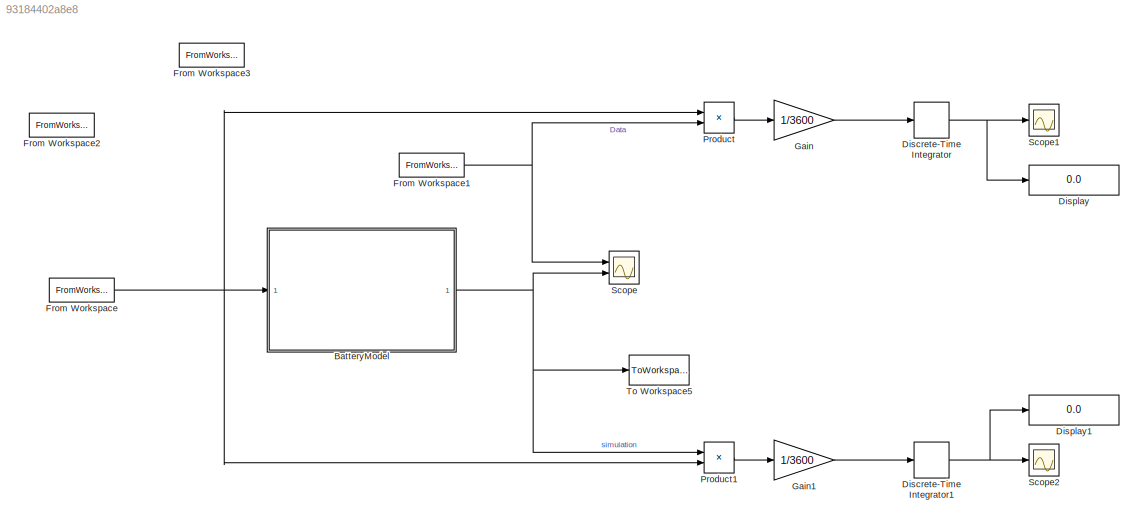
MODEL slx_93184402a8e8
KIND model
CONFIG AbsTol = auto
CONFIG EnableMultiTasking = off
CONFIG FixedStep = auto
CONFIG MaxStep = auto
CONFIG MinStep = auto
CONFIG RelTol = 1e-3
CONFIG SampleTimeConstraint = Unconstrained
CONFIG Solver = VariableStepAuto
CONFIG SolverName = VariableStepAuto
CONFIG StartTime = 0.0
CONFIG StopTime = 2417.4
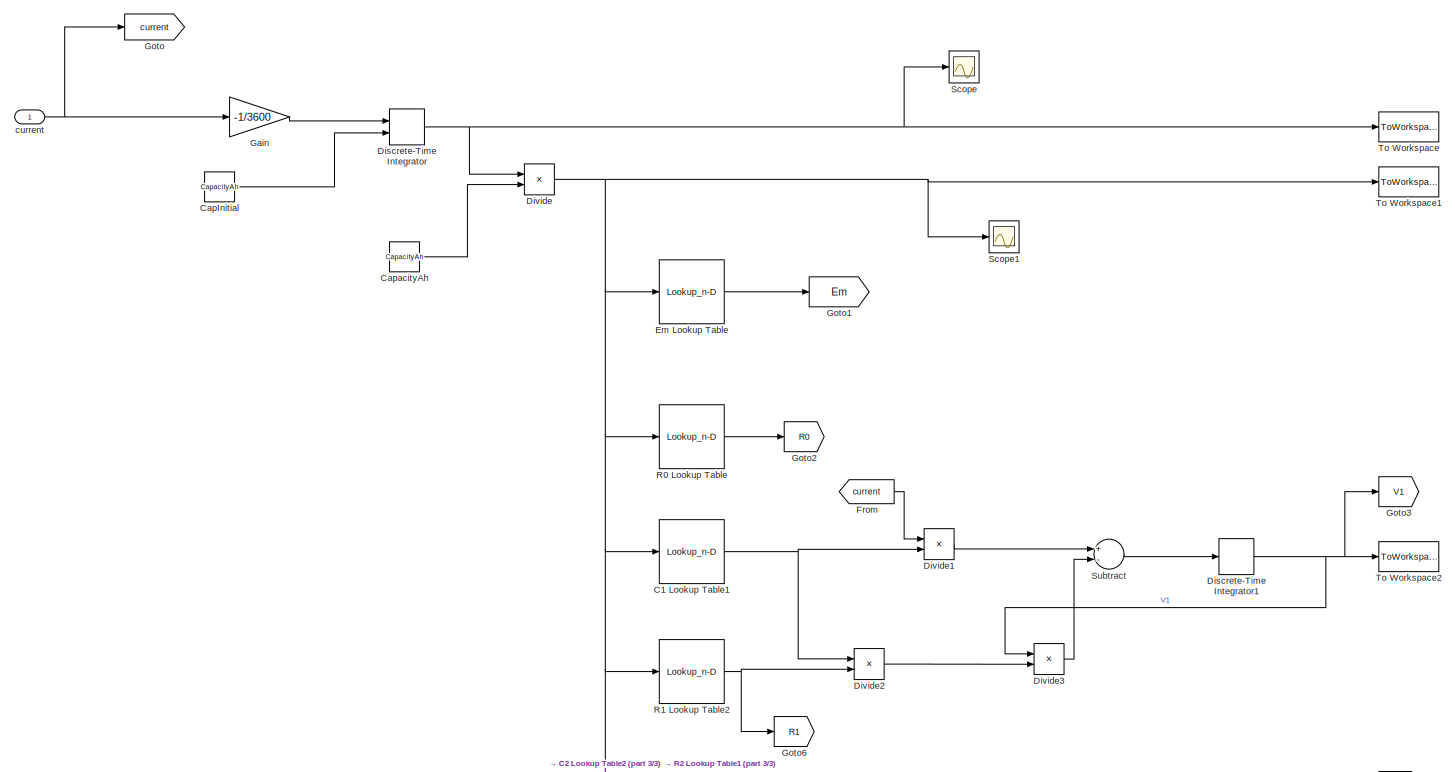
[diagram: BatteryModel - part 1/3, middle left region]
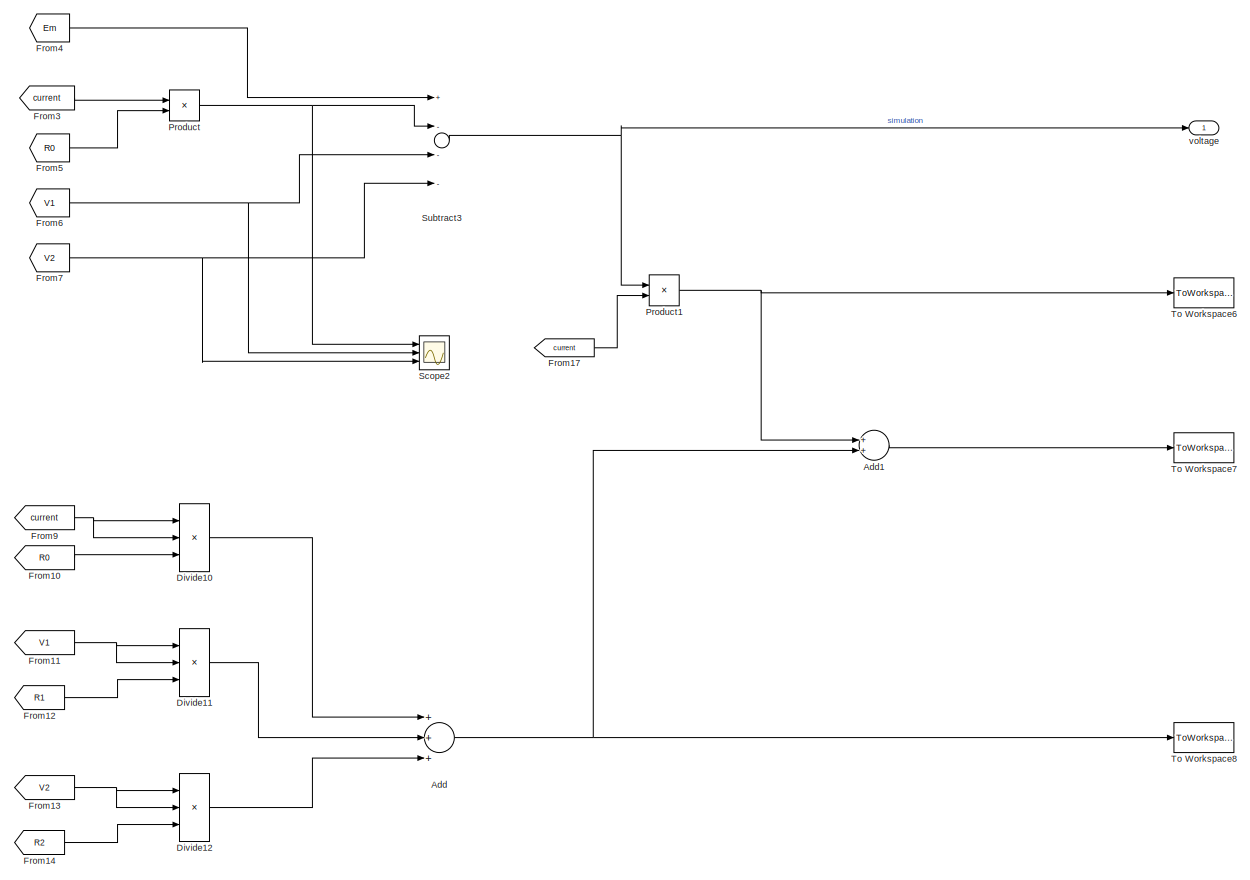
[diagram: BatteryModel - part 2/3, right side, full height]
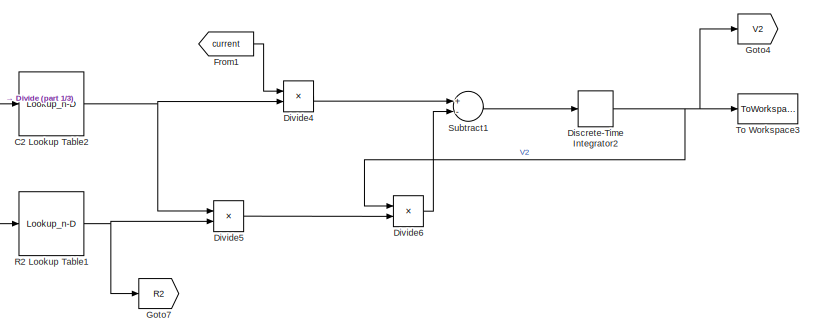
[diagram: BatteryModel - part 3/3, bottom center region]
BLOCK [SubSystem] BatteryModel
  Ports = [1, 1]
  RequestExecContextInheritance = off
BLOCK [Sum] BatteryModel/Add
  InputSameDT = off
  Inputs = +++
  OutDataTypeStr = Inherit: Inherit via internal rule
  Ports = [3, 1]
  SaturateOnIntegerOverflow = off
BLOCK [Sum] BatteryModel/Add1
  InputSameDT = off
  OutDataTypeStr = Inherit: Inherit via internal rule
  Ports = [2, 1]
  SaturateOnIntegerOverflow = off
BLOCK [Lookup_n-D] BatteryModel/C1 Lookup Table1
  BreakpointsForDimension1 = SOC_LUT
  InternalRulePriority = Speed
  NumberOfTableDimensions = 1
  Ports = [1, 1]
  RndMeth = Simplest
  Table = C1Prime(1,:)
BLOCK [Lookup_n-D] BatteryModel/C2 Lookup Table2
  BreakpointsForDimension1 = SOC_LUT
  InternalRulePriority = Speed
  NumberOfTableDimensions = 1
  Ports = [1, 1]
  RndMeth = Simplest
  Table = C2Prime(1,:)
BLOCK [Constant] BatteryModel/CapInitial
  SampleTime = 0.001
  Value = CapacityAh
BLOCK [Constant] BatteryModel/CapacityAh
  SampleTime = 0.001
  Value = CapacityAh
BLOCK [DiscreteIntegrator] BatteryModel/Discrete-Time Integrator
  ICPrevOutput = DiscIntNeverNeededParam
  ICPrevScaledInput = DiscIntNeverNeededParam
  InitialConditionSetting = Auto
  InitialConditionSource = external
  Ports = [2, 1]
  SampleTime = -1
BLOCK [DiscreteIntegrator] BatteryModel/Discrete-Time Integrator1
  ICPrevOutput = DiscIntNeverNeededParam
  ICPrevScaledInput = DiscIntNeverNeededParam
  InitialConditionSetting = Auto
  Ports = [1, 1]
  SampleTime = -1
BLOCK [DiscreteIntegrator] BatteryModel/Discrete-Time Integrator2
  ICPrevOutput = DiscIntNeverNeededParam
  ICPrevScaledInput = DiscIntNeverNeededParam
  InitialConditionSetting = Auto
  Ports = [1, 1]
  SampleTime = -1
BLOCK [Product] BatteryModel/Divide
  InputSameDT = off
  Inputs = */
  OutDataTypeStr = Inherit: Inherit via internal rule
  Ports = [2, 1]
  RndMeth = Floor
  SaturateOnIntegerOverflow = off
BLOCK [Product] BatteryModel/Divide1
  InputSameDT = off
  Inputs = */
  OutDataTypeStr = Inherit: Inherit via internal rule
  Ports = [2, 1]
  RndMeth = Floor
  SaturateOnIntegerOverflow = off
BLOCK [Product] BatteryModel/Divide10
  InputSameDT = off
  Inputs = ***
  OutDataTypeStr = Inherit: Inherit via internal rule
  Ports = [3, 1]
  RndMeth = Floor
  SaturateOnIntegerOverflow = off
BLOCK [Product] BatteryModel/Divide11
  InputSameDT = off
  Inputs = **/
  OutDataTypeStr = Inherit: Inherit via internal rule
  Ports = [3, 1]
  RndMeth = Floor
  SaturateOnIntegerOverflow = off
BLOCK [Product] BatteryModel/Divide12
  InputSameDT = off
  Inputs = **/
  OutDataTypeStr = Inherit: Inherit via internal rule
  Ports = [3, 1]
  RndMeth = Floor
  SaturateOnIntegerOverflow = off
BLOCK [Product] BatteryModel/Divide2
  InputSameDT = off
  Inputs = **
  OutDataTypeStr = Inherit: Inherit via internal rule
  Ports = [2, 1]
  RndMeth = Floor
  SaturateOnIntegerOverflow = off
BLOCK [Product] BatteryModel/Divide3
  InputSameDT = off
  Inputs = */
  OutDataTypeStr = Inherit: Inherit via internal rule
  Ports = [2, 1]
  RndMeth = Floor
  SaturateOnIntegerOverflow = off
BLOCK [Product] BatteryModel/Divide4
  InputSameDT = off
  Inputs = */
  OutDataTypeStr = Inherit: Inherit via internal rule
  Ports = [2, 1]
  RndMeth = Floor
  SaturateOnIntegerOverflow = off
BLOCK [Product] BatteryModel/Divide5
  InputSameDT = off
  Inputs = **
  OutDataTypeStr = Inherit: Inherit via internal rule
  Ports = [2, 1]
  RndMeth = Floor
  SaturateOnIntegerOverflow = off
BLOCK [Product] BatteryModel/Divide6
  InputSameDT = off
  Inputs = */
  OutDataTypeStr = Inherit: Inherit via internal rule
  Ports = [2, 1]
  RndMeth = Floor
  SaturateOnIntegerOverflow = off
BLOCK [Lookup_n-D] BatteryModel/Em Lookup Table
  BreakpointsForDimension1 = SOC_LUT
  InternalRulePriority = Speed
  NumberOfTableDimensions = 1
  Ports = [1, 1]
  RndMeth = Simplest
  Table = Em
BLOCK [From] BatteryModel/From
  GotoTag = current
BLOCK [From] BatteryModel/From1
  GotoTag = current
BLOCK [From] BatteryModel/From10
  GotoTag = R0
BLOCK [From] BatteryModel/From11
  GotoTag = V1
BLOCK [From] BatteryModel/From12
  GotoTag = R1
BLOCK [From] BatteryModel/From13
  GotoTag = V2
BLOCK [From] BatteryModel/From14
  GotoTag = R2
BLOCK [From] BatteryModel/From17
  GotoTag = current
BLOCK [From] BatteryModel/From3
  GotoTag = current
BLOCK [From] BatteryModel/From4
  GotoTag = Em
BLOCK [From] BatteryModel/From5
  GotoTag = R0
BLOCK [From] BatteryModel/From6
  GotoTag = V1
BLOCK [From] BatteryModel/From7
  GotoTag = V2
BLOCK [From] BatteryModel/From9
  GotoTag = current
BLOCK [Gain] BatteryModel/Gain
  Gain = -1/3600
  OutDataTypeStr = Inherit: Inherit via internal rule
  ParamDataTypeStr = Inherit: Inherit via internal rule
  SaturateOnIntegerOverflow = off
BLOCK [Goto] BatteryModel/Goto
  GotoTag = current
BLOCK [Goto] BatteryModel/Goto1
  GotoTag = Em
BLOCK [Goto] BatteryModel/Goto2
  GotoTag = R0
BLOCK [Goto] BatteryModel/Goto3
  GotoTag = V1
BLOCK [Goto] BatteryModel/Goto4
  GotoTag = V2
BLOCK [Goto] BatteryModel/Goto6
  GotoTag = R1
BLOCK [Goto] BatteryModel/Goto7
  GotoTag = R2
BLOCK [Product] BatteryModel/Product
  InputSameDT = off
  OutDataTypeStr = Inherit: Inherit via internal rule
  Ports = [2, 1]
  RndMeth = Floor
  SaturateOnIntegerOverflow = off
BLOCK [Product] BatteryModel/Product1
  InputSameDT = off
  OutDataTypeStr = Inherit: Inherit via internal rule
  Ports = [2, 1]
  RndMeth = Floor
  SaturateOnIntegerOverflow = off
BLOCK [Lookup_n-D] BatteryModel/R0 Lookup Table
  BreakpointsForDimension1 = SOC_LUT
  InternalRulePriority = Speed
  NumberOfTableDimensions = 1
  Ports = [1, 1]
  RndMeth = Simplest
  Table = R0
BLOCK [Lookup_n-D] BatteryModel/R1 Lookup Table2
  BreakpointsForDimension1 = SOC_LUT
  InternalRulePriority = Speed
  NumberOfTableDimensions = 1
  Ports = [1, 1]
  RndMeth = Simplest
  Table = Rx(1,:)
BLOCK [Lookup_n-D] BatteryModel/R2 Lookup Table1
  BreakpointsForDimension1 = SOC_LUT
  InternalRulePriority = Speed
  NumberOfTableDimensions = 1
  Ports = [1, 1]
  RndMeth = Simplest
  Table = Rx(2,:)
BLOCK [Scope] BatteryModel/Scope
  Floating = off
  NumInputPorts = 1
  Ports = [1]
  ScopeSpecificationString = Simulink.scopes.TimeScopeBlockCfg('CurrentConfiguration', extmgr.ConfigurationSet(extmgr.Configuration('Core','General UI',true),extmgr.Configuration('Core','Source UI',true),extmgr.Configuration('Sources','WiredSimulink',true,'DataLoggingVariableName','ScopeData1'),extmgr.Configuration('Visuals','Time Domain',true,'SerializedDisplays',{struct('MinYLimReal','1.14151','MaxYLimReal','7.95459','YLabe...<+1381ch>
BLOCK [Scope] BatteryModel/Scope1
  Floating = off
  NumInputPorts = 1
  Ports = [1]
  ScopeSpecificationString = Simulink.scopes.TimeScopeBlockCfg('CurrentConfiguration', extmgr.ConfigurationSet(extmgr.Configuration('Core','General UI',true),extmgr.Configuration('Core','Source UI',true),extmgr.Configuration('Sources','WiredSimulink',true,'DataLoggingVariableName','ScopeData2'),extmgr.Configuration('Visuals','Time Domain',true,'SerializedDisplays',{struct('MinYLimReal','0.56933','MaxYLimReal','0.84289','YLabe...<+1436ch>
BLOCK [Scope] BatteryModel/Scope2
  Floating = off
  NumInputPorts = 3
  Ports = [3]
  ScopeSpecificationString = Simulink.scopes.TimeScopeBlockCfg('CurrentConfiguration', extmgr.ConfigurationSet(extmgr.Configuration('Core','General UI',true),extmgr.Configuration('Core','Source UI',true),extmgr.Configuration('Sources','WiredSimulink',true,'DataLoggingVariableName','ScopeData1'),extmgr.Configuration('Visuals','Time Domain',true,'SerializedDisplays',{struct('MinYLimReal','-0.10334','MaxYLimReal','0.10587','YLab...<+1519ch>
BLOCK [Sum] BatteryModel/Subtract
  InputSameDT = off
  Inputs = +-
  OutDataTypeStr = Inherit: Inherit via internal rule
  Ports = [2, 1]
  SaturateOnIntegerOverflow = off
BLOCK [Sum] BatteryModel/Subtract1
  InputSameDT = off
  Inputs = +-
  OutDataTypeStr = Inherit: Inherit via internal rule
  Ports = [2, 1]
  SaturateOnIntegerOverflow = off
BLOCK [Sum] BatteryModel/Subtract3
  InputSameDT = off
  Inputs = +---
  OutDataTypeStr = Inherit: Inherit via internal rule
  Ports = [4, 1]
  SaturateOnIntegerOverflow = off
BLOCK [ToWorkspace] BatteryModel/To Workspace
  FixptAsFi = on
  MaxDataPoints = inf
  Ports = [1]
  SampleTime = -1
  VariableName = Ah
BLOCK [ToWorkspace] BatteryModel/To Workspace1
  FixptAsFi = on
  MaxDataPoints = inf
  Ports = [1]
  SampleTime = -1
  VariableName = SOC
BLOCK [ToWorkspace] BatteryModel/To Workspace2
  FixptAsFi = on
  MaxDataPoints = inf
  Ports = [1]
  SampleTime = -1
  VariableName = V1
BLOCK [ToWorkspace] BatteryModel/To Workspace3
  FixptAsFi = on
  MaxDataPoints = inf
  Ports = [1]
  SampleTime = -1
  VariableName = V2
BLOCK [ToWorkspace] BatteryModel/To Workspace6
  FixptAsFi = on
  MaxDataPoints = inf
  Ports = [1]
  SampleTime = -1
  VariableName = PwrLoad
BLOCK [ToWorkspace] BatteryModel/To Workspace7
  FixptAsFi = on
  MaxDataPoints = inf
  Ports = [1]
  SampleTime = -1
  VariableName = PwrStored
BLOCK [ToWorkspace] BatteryModel/To Workspace8
  FixptAsFi = on
  MaxDataPoints = inf
  Ports = [1]
  SampleTime = -1
  VariableName = Pwrloss
BLOCK [Inport] BatteryModel/current
  IconDisplay = Port number
BLOCK [Outport] BatteryModel/voltage
  IconDisplay = Port number
BLOCK [DiscreteIntegrator] Discrete-Time Integrator
  ICPrevOutput = DiscIntNeverNeededParam
  ICPrevScaledInput = DiscIntNeverNeededParam
  InitialConditionSetting = Auto
  Ports = [1, 1]
  SampleTime = -1
BLOCK [DiscreteIntegrator] Discrete-Time Integrator1
  ICPrevOutput = DiscIntNeverNeededParam
  ICPrevScaledInput = DiscIntNeverNeededParam
  InitialConditionSetting = Auto
  Ports = [1, 1]
  SampleTime = -1
BLOCK [Display] Display
  Decimation = 1
  Ports = [1]
BLOCK [Display] Display1
  Decimation = 1
  Ports = [1]
BLOCK [FromWorkspace] From Workspace
  SampleTime = 0
  VariableName = currentdata
  ZeroCross = on
BLOCK [FromWorkspace] From Workspace1
  SampleTime = 0
  VariableName = voltagedata
  ZeroCross = on
BLOCK [FromWorkspace] From Workspace2
  Commented = on
  Interpolate = off
  OutputAfterFinalValue = Cyclic repetition
  SampleTime = 0.001
  VariableName = Ibat
BLOCK [FromWorkspace] From Workspace3
  Commented = on
  Interpolate = off
  OutputAfterFinalValue = Cyclic repetition
  SampleTime = 0.001
  VariableName = Vbat
BLOCK [Gain] Gain
  Gain = 1/3600
  OutDataTypeStr = Inherit: Inherit via internal rule
  ParamDataTypeStr = Inherit: Inherit via internal rule
  SaturateOnIntegerOverflow = off
BLOCK [Gain] Gain1
  Gain = 1/3600
  OutDataTypeStr = Inherit: Inherit via internal rule
  ParamDataTypeStr = Inherit: Inherit via internal rule
  SaturateOnIntegerOverflow = off
BLOCK [Product] Product
  InputSameDT = off
  OutDataTypeStr = Inherit: Inherit via internal rule
  Ports = [2, 1]
  RndMeth = Floor
  SaturateOnIntegerOverflow = off
BLOCK [Product] Product1
  InputSameDT = off
  OutDataTypeStr = Inherit: Inherit via internal rule
  Ports = [2, 1]
  RndMeth = Floor
  SaturateOnIntegerOverflow = off
BLOCK [Scope] Scope
  Floating = off
  NumInputPorts = 2
  Ports = [2]
  ScopeSpecificationString = Simulink.scopes.TimeScopeBlockCfg('CurrentConfiguration', extmgr.ConfigurationSet(extmgr.Configuration('Core','General UI',true),extmgr.Configuration('Core','Source UI',true),extmgr.Configuration('Sources','WiredSimulink',true),extmgr.Configuration('Visuals','Time Domain',true,'SerializedDisplays',{struct('MinYLimReal','3.48013','MaxYLimReal','4.26606','YLabelReal','','MinYLimMag','3.48013','MaxYL...<+1406ch>
BLOCK [Scope] Scope1
  Floating = off
  NumInputPorts = 1
  Ports = [1]
  ScopeSpecificationString = Simulink.scopes.TimeScopeBlockCfg('CurrentConfiguration', extmgr.ConfigurationSet(extmgr.Configuration('Core','General UI',true),extmgr.Configuration('Core','Source UI',true),extmgr.Configuration('Sources','WiredSimulink',true,'DataLoggingVariableName','ScopeData1'),extmgr.Configuration('Visuals','Time Domain',true,'SerializedDisplays',{struct('MinYLimReal','26.58272','MaxYLimReal','26.76913','YLa...<+1462ch>
BLOCK [Scope] Scope2
  Floating = off
  NumInputPorts = 1
  Ports = [1]
  ScopeSpecificationString = Simulink.scopes.TimeScopeBlockCfg('CurrentConfiguration', extmgr.ConfigurationSet(extmgr.Configuration('Core','General UI',true),extmgr.Configuration('Core','Source UI',true),extmgr.Configuration('Sources','WiredSimulink',true,'DataLoggingVariableName','ScopeData1'),extmgr.Configuration('Visuals','Time Domain',true,'SerializedDisplays',{struct('MinYLimReal','-3.34834','MaxYLimReal','30.13504','YLa...<+1461ch>
BLOCK [ToWorkspace] To Workspace5
  FixptAsFi = on
  MaxDataPoints = inf
  Ports = [1]
  SampleTime = -1
  VariableName = BattVolt
LINE BatteryModel/Add1:1 -> BatteryModel/To Workspace7:1
NET BatteryModel/Add:1 -> BatteryModel/Add1:2, BatteryModel/To Workspace8:1
NET BatteryModel/C1 Lookup Table1:1 -> BatteryModel/Divide1:2, BatteryModel/Divide2:1
NET BatteryModel/C2 Lookup Table2:1 -> BatteryModel/Divide4:2, BatteryModel/Divide5:1
LINE BatteryModel/CapInitial:1 -> BatteryModel/Discrete-Time Integrator:2
LINE BatteryModel/CapacityAh:1 -> BatteryModel/Divide:2
NET BatteryModel/Discrete-Time Integrator1:1 -> BatteryModel/Divide3:1, BatteryModel/Goto3:1, BatteryModel/To Workspace2:1
NET BatteryModel/Discrete-Time Integrator2:1 -> BatteryModel/Divide6:1, BatteryModel/Goto4:1, BatteryModel/To Workspace3:1
NET BatteryModel/Discrete-Time Integrator:1 -> BatteryModel/Divide:1, BatteryModel/Scope:1, BatteryModel/To Workspace:1
LINE BatteryModel/Divide10:1 -> BatteryModel/Add:1
LINE BatteryModel/Divide11:1 -> BatteryModel/Add:2
LINE BatteryModel/Divide12:1 -> BatteryModel/Add:3
LINE BatteryModel/Divide1:1 -> BatteryModel/Subtract:1
LINE BatteryModel/Divide2:1 -> BatteryModel/Divide3:2
LINE BatteryModel/Divide3:1 -> BatteryModel/Subtract:2
LINE BatteryModel/Divide4:1 -> BatteryModel/Subtract1:1
LINE BatteryModel/Divide5:1 -> BatteryModel/Divide6:2
LINE BatteryModel/Divide6:1 -> BatteryModel/Subtract1:2
NET BatteryModel/Divide:1 -> BatteryModel/C1 Lookup Table1:1, BatteryModel/C2 Lookup Table2:1, BatteryModel/Em Lookup Table:1, BatteryModel/R0 Lookup Table:1, BatteryModel/R1 Lookup Table2:1, BatteryModel/R2 Lookup Table1:1, BatteryModel/Scope1:1, BatteryModel/To Workspace1:1
LINE BatteryModel/Em Lookup Table:1 -> BatteryModel/Goto1:1
LINE BatteryModel/From10:1 -> BatteryModel/Divide10:3
NET BatteryModel/From11:1 -> BatteryModel/Divide11:1, BatteryModel/Divide11:2
LINE BatteryModel/From12:1 -> BatteryModel/Divide11:3
NET BatteryModel/From13:1 -> BatteryModel/Divide12:1, BatteryModel/Divide12:2
LINE BatteryModel/From14:1 -> BatteryModel/Divide12:3
LINE BatteryModel/From17:1 -> BatteryModel/Product1:2
LINE BatteryModel/From1:1 -> BatteryModel/Divide4:1
LINE BatteryModel/From3:1 -> BatteryModel/Product:1
LINE BatteryModel/From4:1 -> BatteryModel/Subtract3:1
LINE BatteryModel/From5:1 -> BatteryModel/Product:2
NET BatteryModel/From6:1 -> BatteryModel/Scope2:2, BatteryModel/Subtract3:3
NET BatteryModel/From7:1 -> BatteryModel/Scope2:3, BatteryModel/Subtract3:4
NET BatteryModel/From9:1 -> BatteryModel/Divide10:1, BatteryModel/Divide10:2
LINE BatteryModel/From:1 -> BatteryModel/Divide1:1
LINE BatteryModel/Gain:1 -> BatteryModel/Discrete-Time Integrator:1
NET BatteryModel/Product1:1 -> BatteryModel/Add1:1, BatteryModel/To Workspace6:1
NET BatteryModel/Product:1 -> BatteryModel/Scope2:1, BatteryModel/Subtract3:2
LINE BatteryModel/R0 Lookup Table:1 -> BatteryModel/Goto2:1
NET BatteryModel/R1 Lookup Table2:1 -> BatteryModel/Divide2:2, BatteryModel/Goto6:1
NET BatteryModel/R2 Lookup Table1:1 -> BatteryModel/Divide5:2, BatteryModel/Goto7:1
LINE BatteryModel/Subtract1:1 -> BatteryModel/Discrete-Time Integrator2:1
NET BatteryModel/Subtract3:1 -> BatteryModel/Product1:1, BatteryModel/voltage:1
LINE BatteryModel/Subtract:1 -> BatteryModel/Discrete-Time Integrator1:1
NET BatteryModel/current:1 -> BatteryModel/Gain:1, BatteryModel/Goto:1
NET BatteryModel:1 -> Product1:1, Scope:2, To Workspace5:1
NET Discrete-Time Integrator1:1 -> Display1:1, Scope2:1
NET Discrete-Time Integrator:1 -> Display:1, Scope1:1
NET From Workspace1:1 -> Product:2, Scope:1
NET From Workspace:1 -> BatteryModel:1, Product1:2, Product:1
LINE Gain1:1 -> Discrete-Time Integrator1:1
LINE Gain:1 -> Discrete-Time Integrator:1
LINE Product1:1 -> Gain1:1
LINE Product:1 -> Gain:1
note: NET lines group one-source signal fan-out (src -> all destinations, sorted); 1:1 wires keep LINE
